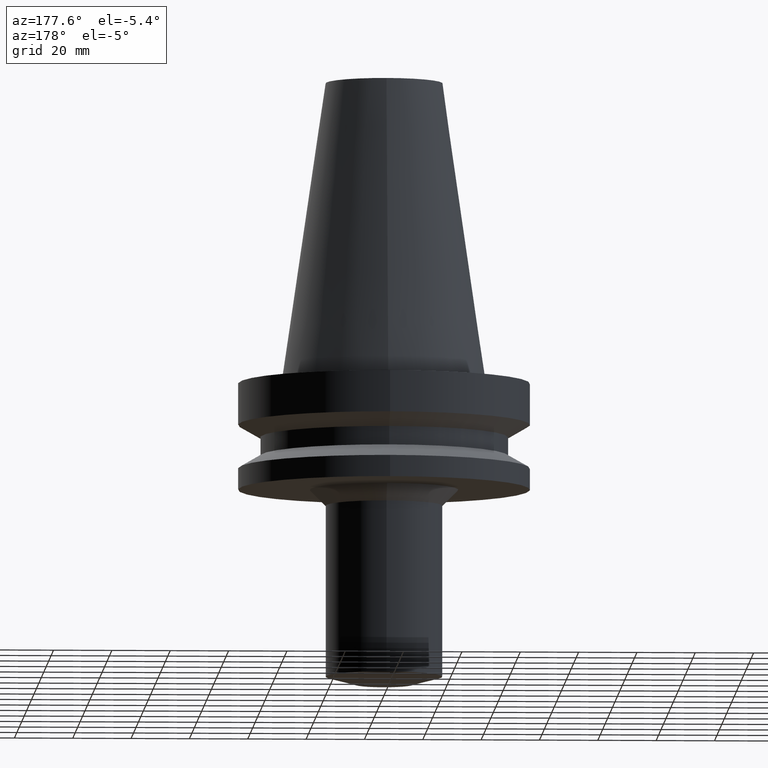
[diagram: clean part render]
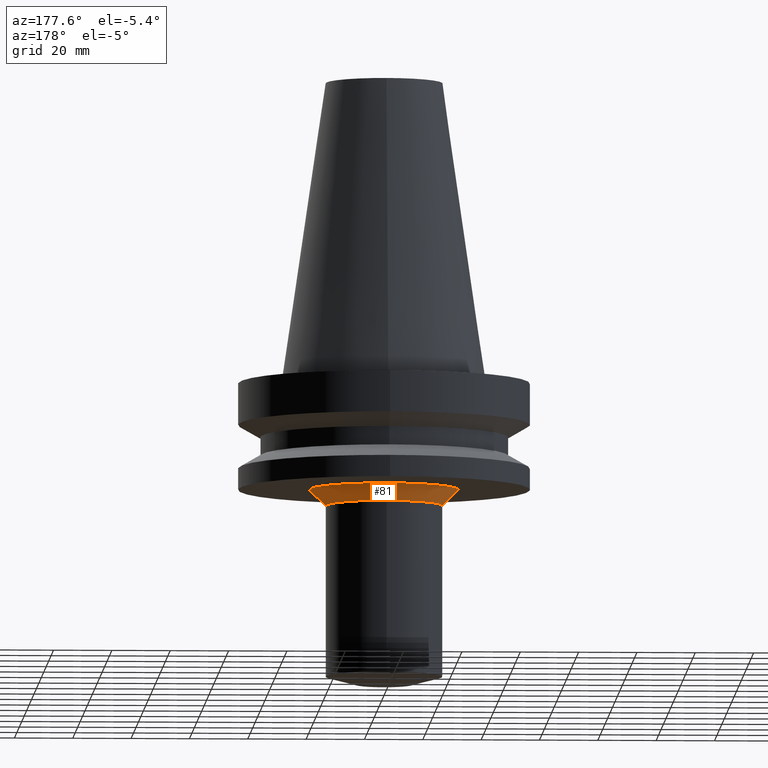
[diagram: same view with one face highlighted and labeled with its STEP entity id]
A machine part, auxiliary view. The second image highlights one B-rep face of the part: STEP entity #81.
In plain terms, the highlighted conical surface has half-angle 45 deg.
Its self-contained STEP definition (entity closure, byte-faithful):
#81=ADVANCED_FACE('Unnamed[1]',(#183,#184),#185,.T.);
#106=EDGE_CURVE('Unnamed[1]',#222,#222,#223,.T.);
#119=EDGE_CURVE('Unnamed[1]',#243,#243,#244,.T.);
#183=FACE_BOUND('',#310,.T.);
#184=FACE_BOUND('',#311,.T.);
#185=CONICAL_SURFACE('',#312,22.749999999996,0.785398163397359);
#222=VERTEX_POINT('',#359);
#223=CIRCLE('',#360,20.0000000000014);
#243=VERTEX_POINT('',#385);
#244=CIRCLE('',#386,25.4999999999905);
#310=EDGE_LOOP('',(#439));
#311=EDGE_LOOP('',(#440));
#312=AXIS2_PLACEMENT_3D('',#441,#442,#443);
#359=CARTESIAN_POINT('',(2.66360678814489E-015,20.0000000000014,-43.4999999999901));
#360=AXIS2_PLACEMENT_3D('',#484,#485,#486);
#385=CARTESIAN_POINT('',(2.32682891837997E-015,25.4999999999905,-38.0));
#386=AXIS2_PLACEMENT_3D('',#508,#509,#510);
#439=ORIENTED_EDGE('',*,*,#106,.F.);
#440=ORIENTED_EDGE('',*,*,#119,.T.);
#441=CARTESIAN_POINT('',(2.49521785326243E-015,4.99043570652486E-015,-40.7499999999951));
#442=DIRECTION('',(-6.12323399573677E-017,-1.22464679914735E-016,1.0));
#443=DIRECTION('',(-1.23259516440783E-032,1.0,1.22464679914735E-016));
#484=CARTESIAN_POINT('',(2.66360678814489E-015,5.32721357628977E-015,-43.4999999999901));
#485=DIRECTION('',(6.12323399573677E-017,1.22464679914735E-016,-1.0));
#486=DIRECTION('',(-1.23259516440783E-032,1.0,1.22464679914735E-016));
#508=CARTESIAN_POINT('',(2.32682891837997E-015,4.65365783675994E-015,-38.0));
#509=DIRECTION('',(6.12323399573677E-017,1.22464679914735E-016,-1.0));
#510=DIRECTION('',(-1.23259516440783E-032,1.0,1.22464679914735E-016));